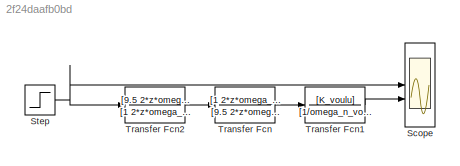
MODEL slx_2f24daafb0bd
KIND model
CONFIG AbsTol = auto
CONFIG EnableMultiTasking = off
CONFIG FixedStep = auto
CONFIG MaxStep = auto
CONFIG MinStep = auto
CONFIG RelTol = 1e-3
CONFIG SampleTimeConstraint = Unconstrained
CONFIG SolverName = VariableStepAuto
CONFIG StartTime = 0.0
CONFIG StopTime = 110
BLOCK [Scope] Scope
  Floating = off
  NumInputPorts = 2
  ScopeSpecificationString = Simulink.scopes.TimeScopeBlockCfg('CurrentConfiguration', extmgr.ConfigurationSet(extmgr.Configuration('Core','General UI',true),extmgr.Configuration('Core','Source UI',true),extmgr.Configuration('Sources','WiredSimulink',true),extmgr.Configuration('Visuals','Time Domain',true,'SerializedDisplays',{struct('MinYLimReal','-0.12505','MaxYLimReal','1.12546','YLabelReal','','MinYLimMag','0.00000','MaxY...<+1527ch>
BLOCK [Step] Step
  SampleTime = 0
  Time = 0
BLOCK [TransferFcn] Transfer Fcn
  Denominator = [9.5 2*z*omega_n (9.5-K)*omega_n^2]
  Numerator = [1 2*z*omega_n omega_n^2]
BLOCK [TransferFcn] Transfer Fcn1
  Denominator = [1/omega_n_voulu^2 2*z_voulu/omega_n_voulu 1]
  Numerator = [K_voulu]
BLOCK [TransferFcn] Transfer Fcn2
  Denominator = [1 2*z*omega_n omega_n^2]
  Numerator = [9.5 2*z*omega_n (9.5-K)*omega_n^2]
NET Step:1 -> Scope:1, Transfer Fcn2:1
LINE Transfer Fcn1:1 -> Scope:2
LINE Transfer Fcn2:1 -> Transfer Fcn:1
LINE Transfer Fcn:1 -> Transfer Fcn1:1
note: NET lines group one-source signal fan-out (src -> all destinations, sorted); 1:1 wires keep LINE
